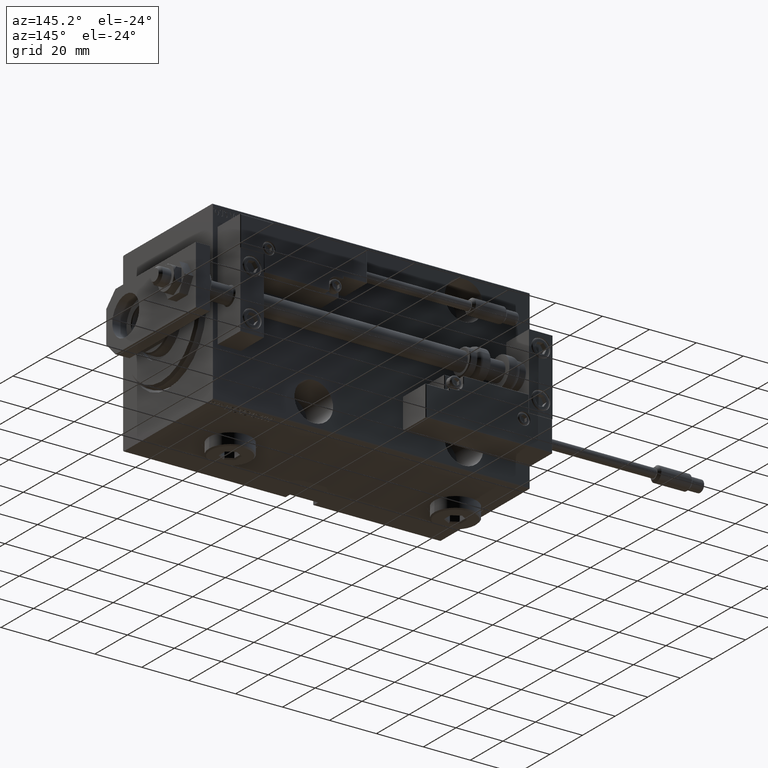
[diagram: clean part render]
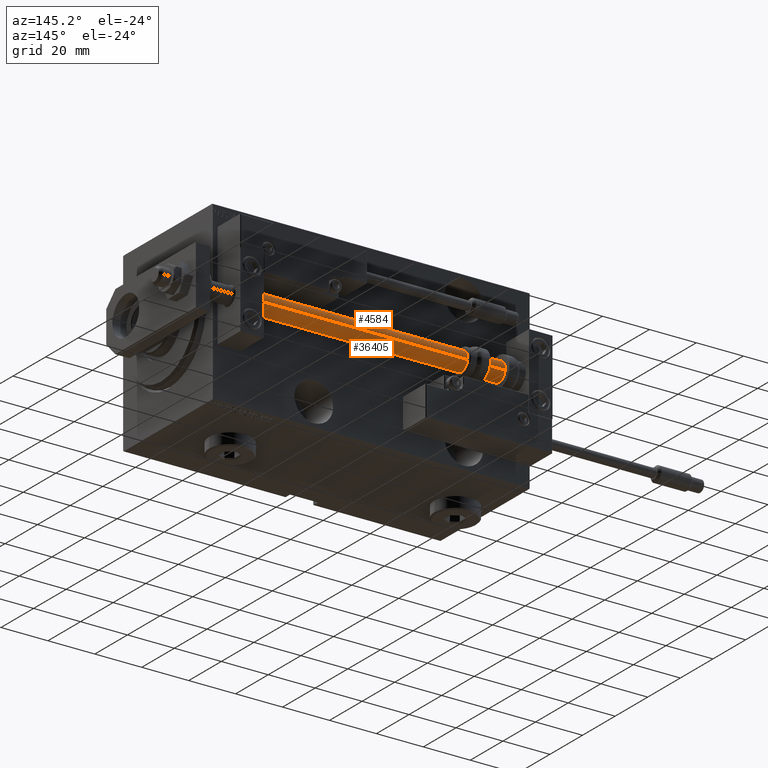
[diagram: same view with one multi-face feature highlighted, each face labeled with its STEP entity id]
A machine part, auxiliary view. The highlighted faces form ONE feature: a constant-radius fillet chain: 2 tangent blend faces with common blend radius 4 mm. The faces share edges in the B-rep.
Their STEP definitions:
[1] entity #4584 (Cylinder):
#62 = LINE ( 'NONE', #11811, #19882 ) ;
#836 = DIRECTION ( 'NONE',  ( -0.000000000000000000, -0.000000000000000000, -1.000000000000000000 ) ) ;
#1262 = CIRCLE ( 'NONE', #34589, 4.000000000000000000 ) ;
#4584 = ADVANCED_FACE ( 'NONE', ( #47930 ), #5183, .T. ) ;
#5183 = CYLINDRICAL_SURFACE ( 'NONE', #29802, 4.000000000000000000 ) ;
#5402 = CARTESIAN_POINT ( 'NONE',  ( -4.000000000000000000, 0.000000000000000000, 135.0000000000000000 ) ) ;
#6276 = CARTESIAN_POINT ( 'NONE',  ( 4.000000000000000000, 4.898587196589412829E-16, 2.000000000000029310 ) ) ;
#6342 = EDGE_CURVE ( 'NONE', #30590, #46957, #62, .T. ) ;
#6350 = DIRECTION ( 'NONE',  ( 0.000000000000000000, 0.000000000000000000, 1.000000000000000000 ) ) ;
#7496 = ORIENTED_EDGE ( 'NONE', *, *, #6342, .F. ) ;
#11767 = ORIENTED_EDGE ( 'NONE', *, *, #39414, .F. ) ;
#11811 = CARTESIAN_POINT ( 'NONE',  ( 4.000000000000000000, 4.898587196589412829E-16, 135.0000000000000000 ) ) ;
#14459 = DIRECTION ( 'NONE',  ( 1.000000000000000000, 0.000000000000000000, 0.000000000000000000 ) ) ;
#17770 = AXIS2_PLACEMENT_3D ( 'NONE', #23070, #6350, #14459 ) ;
#18718 = VERTEX_POINT ( 'NONE', #36400 ) ;
#19882 = VECTOR ( 'NONE', #836, 1000.000000000000000 ) ;
#21209 = ORIENTED_EDGE ( 'NONE', *, *, #25364, .T. ) ;
#23070 = CARTESIAN_POINT ( 'NONE',  ( 0.000000000000000000, 0.000000000000000000, 135.0000000000000000 ) ) ;
#23525 = CARTESIAN_POINT ( 'NONE',  ( 4.000000000000000000, 4.898587196589412829E-16, 135.0000000000000000 ) ) ;
#23995 = CARTESIAN_POINT ( 'NONE',  ( 0.000000000000000000, 0.000000000000000000, 135.0000000000000000 ) ) ;
#24508 = DIRECTION ( 'NONE',  ( -1.000000000000000000, 0.000000000000000000, 0.000000000000000000 ) ) ;
#25364 = EDGE_CURVE ( 'NONE', #18718, #46957, #1262, .T. ) ;
#29802 = AXIS2_PLACEMENT_3D ( 'NONE', #23995, #40923, #24508 ) ;
#30590 = VERTEX_POINT ( 'NONE', #23525 ) ;
#30859 = DIRECTION ( 'NONE',  ( 1.000000000000000000, 0.000000000000000000, 0.000000000000000000 ) ) ;
#33074 = CARTESIAN_POINT ( 'NONE',  ( -4.000000000000000000, 0.000000000000000000, 135.0000000000000000 ) ) ;
#34589 = AXIS2_PLACEMENT_3D ( 'NONE', #39970, #50891, #30859 ) ;
#36400 = CARTESIAN_POINT ( 'NONE',  ( -4.000000000000000000, 0.000000000000000000, 2.000000000000029310 ) ) ;
#38861 = EDGE_LOOP ( 'NONE', ( #7496, #11767, #42938, #21209 ) ) ;
#39414 = EDGE_CURVE ( 'NONE', #49954, #30590, #45212, .T. ) ;
#39970 = CARTESIAN_POINT ( 'NONE',  ( 0.000000000000000000, 0.000000000000000000, 2.000000000000029310 ) ) ;
#40923 = DIRECTION ( 'NONE',  ( -0.000000000000000000, -0.000000000000000000, -1.000000000000000000 ) ) ;
#42081 = VECTOR ( 'NONE', #49683, 1000.000000000000000 ) ;
#42153 = LINE ( 'NONE', #5402, #42081 ) ;
#42938 = ORIENTED_EDGE ( 'NONE', *, *, #47667, .T. ) ;
#45212 = CIRCLE ( 'NONE', #17770, 4.000000000000000000 ) ;
#46957 = VERTEX_POINT ( 'NONE', #6276 ) ;
#47667 = EDGE_CURVE ( 'NONE', #49954, #18718, #42153, .T. ) ;
#47930 = FACE_OUTER_BOUND ( 'NONE', #38861, .T. ) ;
#49683 = DIRECTION ( 'NONE',  ( -0.000000000000000000, -0.000000000000000000, -1.000000000000000000 ) ) ;
#49954 = VERTEX_POINT ( 'NONE', #33074 ) ;
#50891 = DIRECTION ( 'NONE',  ( -0.000000000000000000, -0.000000000000000000, 1.000000000000000000 ) ) ;
[2] entity #36405 (Cylinder):
#62 = LINE ( 'NONE', #11811, #19882 ) ;
#836 = DIRECTION ( 'NONE',  ( -0.000000000000000000, -0.000000000000000000, -1.000000000000000000 ) ) ;
#2025 = EDGE_LOOP ( 'NONE', ( #19237, #32051, #24406, #38733 ) ) ;
#2329 = CIRCLE ( 'NONE', #48912, 4.000000000000000000 ) ;
#5402 = CARTESIAN_POINT ( 'NONE',  ( -4.000000000000000000, 0.000000000000000000, 135.0000000000000000 ) ) ;
#6255 = DIRECTION ( 'NONE',  ( 1.000000000000000000, 0.000000000000000000, 0.000000000000000000 ) ) ;
#6276 = CARTESIAN_POINT ( 'NONE',  ( 4.000000000000000000, 4.898587196589412829E-16, 2.000000000000029310 ) ) ;
#6342 = EDGE_CURVE ( 'NONE', #30590, #46957, #62, .T. ) ;
#6459 = DIRECTION ( 'NONE',  ( -1.000000000000000000, 0.000000000000000000, 0.000000000000000000 ) ) ;
#6732 = AXIS2_PLACEMENT_3D ( 'NONE', #26290, #30449, #6459 ) ;
#8036 = EDGE_CURVE ( 'NONE', #30590, #49954, #2329, .T. ) ;
#11811 = CARTESIAN_POINT ( 'NONE',  ( 4.000000000000000000, 4.898587196589412829E-16, 135.0000000000000000 ) ) ;
#12414 = EDGE_CURVE ( 'NONE', #46957, #18718, #45784, .T. ) ;
#17505 = DIRECTION ( 'NONE',  ( -0.000000000000000000, -0.000000000000000000, 1.000000000000000000 ) ) ;
#18718 = VERTEX_POINT ( 'NONE', #36400 ) ;
#19237 = ORIENTED_EDGE ( 'NONE', *, *, #8036, .F. ) ;
#19882 = VECTOR ( 'NONE', #836, 1000.000000000000000 ) ;
#23362 = AXIS2_PLACEMENT_3D ( 'NONE', #32380, #17505, #6255 ) ;
#23525 = CARTESIAN_POINT ( 'NONE',  ( 4.000000000000000000, 4.898587196589412829E-16, 135.0000000000000000 ) ) ;
#24406 = ORIENTED_EDGE ( 'NONE', *, *, #12414, .T. ) ;
#26290 = CARTESIAN_POINT ( 'NONE',  ( 0.000000000000000000, 0.000000000000000000, 135.0000000000000000 ) ) ;
#26806 = CYLINDRICAL_SURFACE ( 'NONE', #6732, 4.000000000000000000 ) ;
#29343 = CARTESIAN_POINT ( 'NONE',  ( 0.000000000000000000, 0.000000000000000000, 135.0000000000000000 ) ) ;
#30449 = DIRECTION ( 'NONE',  ( -0.000000000000000000, -0.000000000000000000, -1.000000000000000000 ) ) ;
#30590 = VERTEX_POINT ( 'NONE', #23525 ) ;
#32051 = ORIENTED_EDGE ( 'NONE', *, *, #6342, .T. ) ;
#32380 = CARTESIAN_POINT ( 'NONE',  ( 0.000000000000000000, 0.000000000000000000, 2.000000000000029310 ) ) ;
#33074 = CARTESIAN_POINT ( 'NONE',  ( -4.000000000000000000, 0.000000000000000000, 135.0000000000000000 ) ) ;
#36400 = CARTESIAN_POINT ( 'NONE',  ( -4.000000000000000000, 0.000000000000000000, 2.000000000000029310 ) ) ;
#36405 = ADVANCED_FACE ( 'NONE', ( #50747 ), #26806, .T. ) ;
#38733 = ORIENTED_EDGE ( 'NONE', *, *, #47667, .F. ) ;
#42081 = VECTOR ( 'NONE', #49683, 1000.000000000000000 ) ;
#42153 = LINE ( 'NONE', #5402, #42081 ) ;
#44978 = DIRECTION ( 'NONE',  ( 0.000000000000000000, 0.000000000000000000, 1.000000000000000000 ) ) ;
#45784 = CIRCLE ( 'NONE', #23362, 4.000000000000000000 ) ;
#46957 = VERTEX_POINT ( 'NONE', #6276 ) ;
#47667 = EDGE_CURVE ( 'NONE', #49954, #18718, #42153, .T. ) ;
#48912 = AXIS2_PLACEMENT_3D ( 'NONE', #29343, #44978, #49374 ) ;
#49374 = DIRECTION ( 'NONE',  ( 1.000000000000000000, 0.000000000000000000, 0.000000000000000000 ) ) ;
#49683 = DIRECTION ( 'NONE',  ( -0.000000000000000000, -0.000000000000000000, -1.000000000000000000 ) ) ;
#49954 = VERTEX_POINT ( 'NONE', #33074 ) ;
#50747 = FACE_OUTER_BOUND ( 'NONE', #2025, .T. ) ;